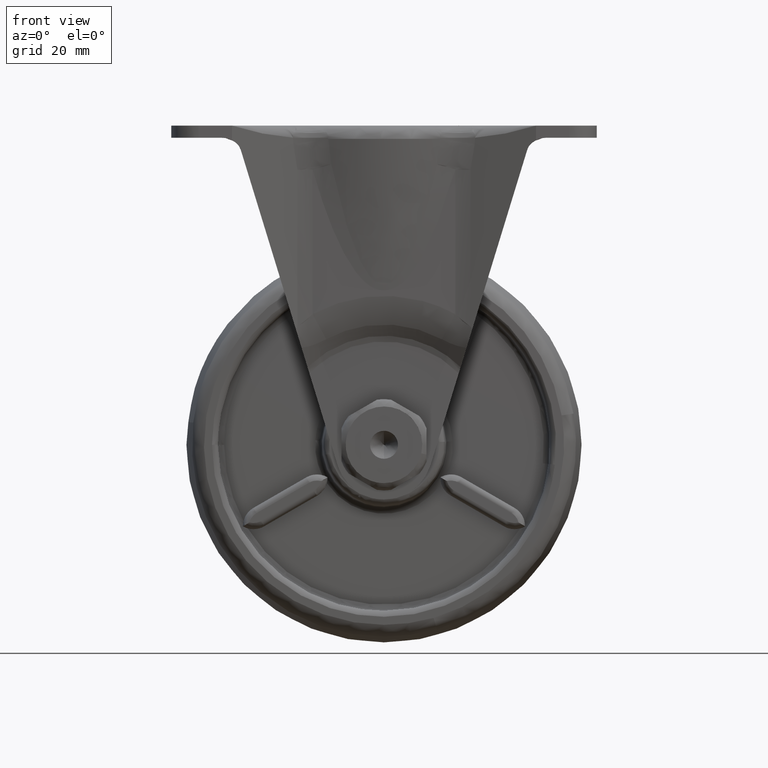
[diagram: clean part render]
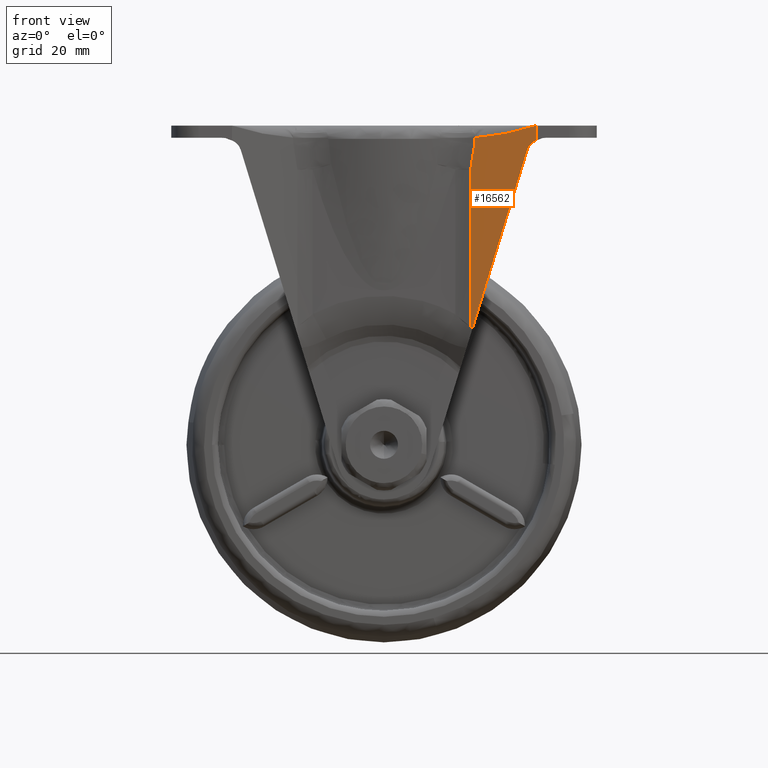
[diagram: same view with one face highlighted and labeled with its STEP entity id]
A machine part, front view. The second image highlights one B-rep face of the part: STEP entity #16562.
In plain terms, the highlighted face is a freeform B-spline surface patch.
Its self-contained STEP definition (entity closure, byte-faithful):
#12462=CARTESIAN_POINT('',(14.250059904178260,-20.723892466977048,45.268858470410002));
#12463=VERTEX_POINT('',#12462);
#12530=CARTESIAN_POINT('',(14.908325734011459,-20.893887019310849,49.444294306365101));
#12531=VERTEX_POINT('',#12530);
#12561=CARTESIAN_POINT('',(14.908325734011459,-20.893887019310849,49.444294306365101));
#12562=CARTESIAN_POINT('',(14.580186172123703,-20.809146272642831,47.327229750379679));
#12563=CARTESIAN_POINT('',(14.250059904178260,-20.723892466977048,45.268858470410002));
#12571=(BOUNDED_CURVE()B_SPLINE_CURVE(2,(#12561,#12562,#12563),.UNSPECIFIED.,.F.,.U.)CURVE()GEOMETRIC_REPRESENTATION_ITEM()QUASI_UNIFORM_CURVE()RATIONAL_B_SPLINE_CURVE((1.0,0.999958882728839,1.0))REPRESENTATION_ITEM(''));
#12572=EDGE_CURVE('',#12531,#12463,#12571,.T.);
#12625=CARTESIAN_POINT('',(14.989855178939120,-20.914941676661101,50.513882271842697));
#12626=VERTEX_POINT('',#12625);
#12654=CARTESIAN_POINT('',(14.989855178939120,-20.914941676661101,50.513882271842697));
#12655=CARTESIAN_POINT('',(14.990588619352630,-20.915131084752950,50.151626764992692));
#12656=CARTESIAN_POINT('',(14.962721287333361,-20.907934456253230,49.795239182619582));
#12657=CARTESIAN_POINT('',(14.908325734011481,-20.893887019310849,49.444294306365009));
#12658=QUASI_UNIFORM_CURVE('',3,(#12654,#12655,#12656,#12657),.UNSPECIFIED.,.F.,.U.);
#12659=EDGE_CURVE('',#12626,#12531,#12658,.T.);
#13393=CARTESIAN_POINT('',(24.999914554479648,-23.500000000000000,52.500000000000000));
#13394=VERTEX_POINT('',#13393);
#13395=CARTESIAN_POINT('',(24.999914554479648,-23.500000000000000,52.500000000000000));
#13396=CARTESIAN_POINT('',(21.663228095966129,-22.638313892220381,51.568819095590293));
#13397=CARTESIAN_POINT('',(18.326541637452621,-21.776627784440709,50.637638191180592));
#13398=CARTESIAN_POINT('',(14.989855178939120,-20.914941676661101,50.513882271842697));
#13399=B_SPLINE_CURVE_WITH_KNOTS('',3,(#13395,#13396,#13397,#13398),.UNSPECIFIED.,.F.,.U.,(4,4),(0.0,0.931180904409706),.UNSPECIFIED.);
#13400=EDGE_CURVE('',#13394,#12626,#13399,.T.);
#14322=CARTESIAN_POINT('',(23.567247097333251,-23.130019284029199,48.539384540852403));
#14323=VERTEX_POINT('',#14322);
#14361=CARTESIAN_POINT('',(24.999914554479648,-23.500000000000000,50.078463435990301));
#14362=VERTEX_POINT('',#14361);
#14376=CARTESIAN_POINT('',(23.567247097333251,-23.130019284029199,48.539384540852303));
#14377=CARTESIAN_POINT('',(23.621363894196371,-23.143994733216388,48.715769840322913));
#14378=CARTESIAN_POINT('',(23.694758706015659,-23.162948653674309,48.881900514558609));
#14379=CARTESIAN_POINT('',(23.810433039184900,-23.192821093640699,49.076834249311631));
#14380=CARTESIAN_POINT('',(23.834768699802009,-23.199105681940530,49.115182253512479));
#14381=CARTESIAN_POINT('',(23.885854532268500,-23.212298396535701,49.190593902094513));
#14382=CARTESIAN_POINT('',(23.912690815148199,-23.219228760664731,49.227761458037122));
#14383=CARTESIAN_POINT('',(23.995868347991149,-23.240709030213971,49.336090933755742));
#14384=CARTESIAN_POINT('',(24.055023691978349,-23.255985664308430,49.404369104109641));
#14385=CARTESIAN_POINT('',(24.180110709839379,-23.288288892943960,49.533713983031092));
#14386=CARTESIAN_POINT('',(24.246043840719530,-23.305315863751140,49.594779141032816));
#14387=CARTESIAN_POINT('',(24.384206010216921,-23.340995698688221,49.710209266989807));
#14388=CARTESIAN_POINT('',(24.456709905369841,-23.359719543433609,49.764734878693147));
#14389=CARTESIAN_POINT('',(24.679831835597259,-23.417339901237199,49.916767177048179));
#14390=CARTESIAN_POINT('',(24.836627906668191,-23.457831867706339,50.003508149868019));
#14391=CARTESIAN_POINT('',(24.999914554479648,-23.500000000000000,50.078463435990301));
#14392=B_SPLINE_CURVE_WITH_KNOTS('',3,(#14376,#14377,#14378,#14379,#14380,#14381,#14382,#14383,#14384,#14385,#14386,#14387,#14388,#14389,#14390,#14391),.UNSPECIFIED.,.F.,.U.,(4,2,2,2,2,2,2,4),(0.0,0.250000000000005,0.312500000000004,0.375000000000002,0.500000000000002,0.625000000000001,0.750000000000001,1.0),.UNSPECIFIED.);
#14393=EDGE_CURVE('',#14323,#14362,#14392,.T.);
#14967=CARTESIAN_POINT('',(14.250059904178260,-20.723892466977048,19.479886328267099));
#14968=VERTEX_POINT('',#14967);
#14969=CARTESIAN_POINT('',(14.528224542155520,-20.795727386799701,19.078093541884950));
#14970=VERTEX_POINT('',#14969);
#14971=CARTESIAN_POINT('',(14.250059904178260,-20.723892466977048,19.479886328267099));
#14972=CARTESIAN_POINT('',(14.339706213829629,-20.747043272604351,19.343737943076981));
#14973=CARTESIAN_POINT('',(14.432154588949469,-20.770917700578970,19.209548890858070));
#14974=CARTESIAN_POINT('',(14.528224542155520,-20.795727386799701,19.078093541884950));
#14975=QUASI_UNIFORM_CURVE('',3,(#14971,#14972,#14973,#14974),.UNSPECIFIED.,.F.,.U.);
#14976=EDGE_CURVE('',#14968,#14970,#14975,.T.);
#15412=CARTESIAN_POINT('',(14.250059904178260,-20.723892466977048,45.268858470410002));
#15413=CARTESIAN_POINT('',(14.250059904178260,-20.723892466977048,19.479886328267099));
#15414=QUASI_UNIFORM_CURVE('',1,(#15412,#15413),.UNSPECIFIED.,.F.,.U.);
#15415=EDGE_CURVE('',#12463,#14968,#15414,.T.);
#15824=CARTESIAN_POINT('',(23.567247097333251,-23.130019284029199,48.539384540852403));
#15825=CARTESIAN_POINT('',(14.528224542155520,-20.795727386799701,19.078093541884950));
#15826=QUASI_UNIFORM_CURVE('',1,(#15824,#15825),.UNSPECIFIED.,.F.,.U.);
#15827=EDGE_CURVE('',#14323,#14970,#15826,.T.);
#16538=CARTESIAN_POINT('',(24.999914554479648,-23.500000000000000,50.078463435990301));
#16539=CARTESIAN_POINT('',(24.999914554479648,-23.500000000000000,52.500000000000000));
#16540=QUASI_UNIFORM_CURVE('',1,(#16538,#16539),.UNSPECIFIED.,.F.,.U.);
#16541=EDGE_CURVE('',#14362,#13394,#16540,.T.);
#16547=CARTESIAN_POINT('',(13.713104824548980,-20.585225937061519,17.408670320303070));
#16548=CARTESIAN_POINT('',(25.536869249664161,-23.638666430634231,17.408670320303070));
#16549=CARTESIAN_POINT('',(13.713104824548980,-20.585225937061519,54.169425014472651));
#16550=CARTESIAN_POINT('',(25.536869249664161,-23.638666430634231,54.169425014472651));
#16551=B_SPLINE_SURFACE_WITH_KNOTS('',1,1,((#16547,#16549),(#16548,#16550)),.UNSPECIFIED.,.F.,.F.,.U.,(2,2),(2,2),(0.0,12.211670812317569),(0.0,36.760754694169577),.UNSPECIFIED.);
#16552=ORIENTED_EDGE('',*,*,#13400,.T.);
#16553=ORIENTED_EDGE('',*,*,#12659,.T.);
#16554=ORIENTED_EDGE('',*,*,#12572,.T.);
#16555=ORIENTED_EDGE('',*,*,#15415,.T.);
#16556=ORIENTED_EDGE('',*,*,#14976,.T.);
#16557=ORIENTED_EDGE('',*,*,#15827,.F.);
#16558=ORIENTED_EDGE('',*,*,#14393,.T.);
#16559=ORIENTED_EDGE('',*,*,#16541,.T.);
#16560=EDGE_LOOP('',(#16552,#16553,#16554,#16555,#16556,#16557,#16558,#16559));
#16561=FACE_OUTER_BOUND('',#16560,.T.);
#16562=ADVANCED_FACE('',(#16561),#16551,.T.);